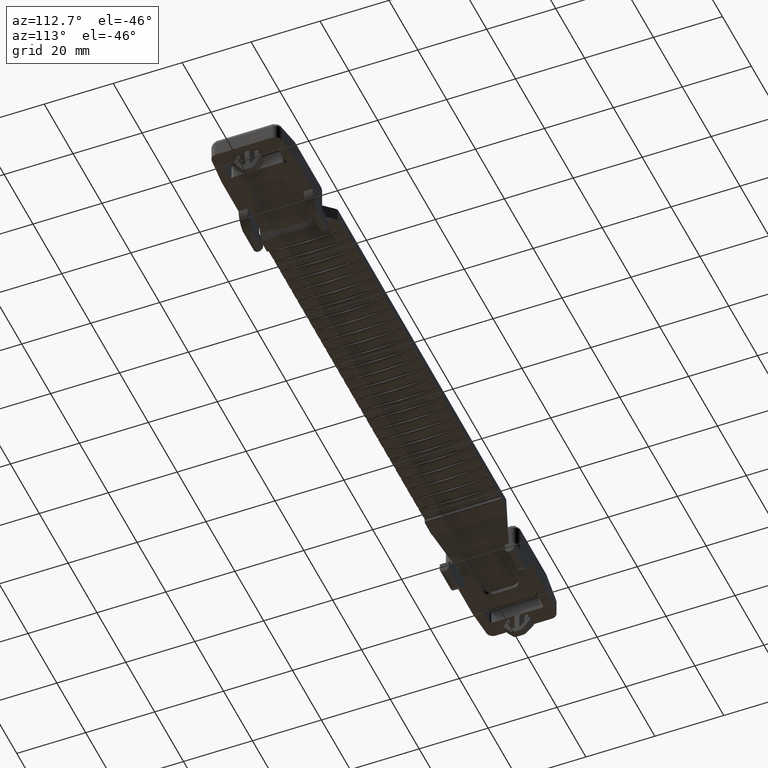
[diagram: clean part render]
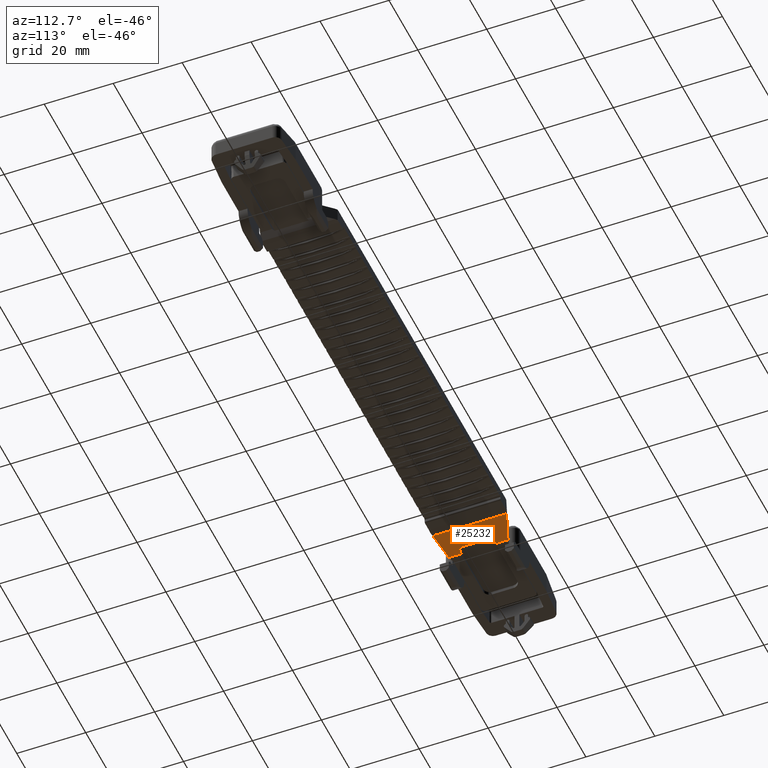
[diagram: same view with one face highlighted and labeled with its STEP entity id]
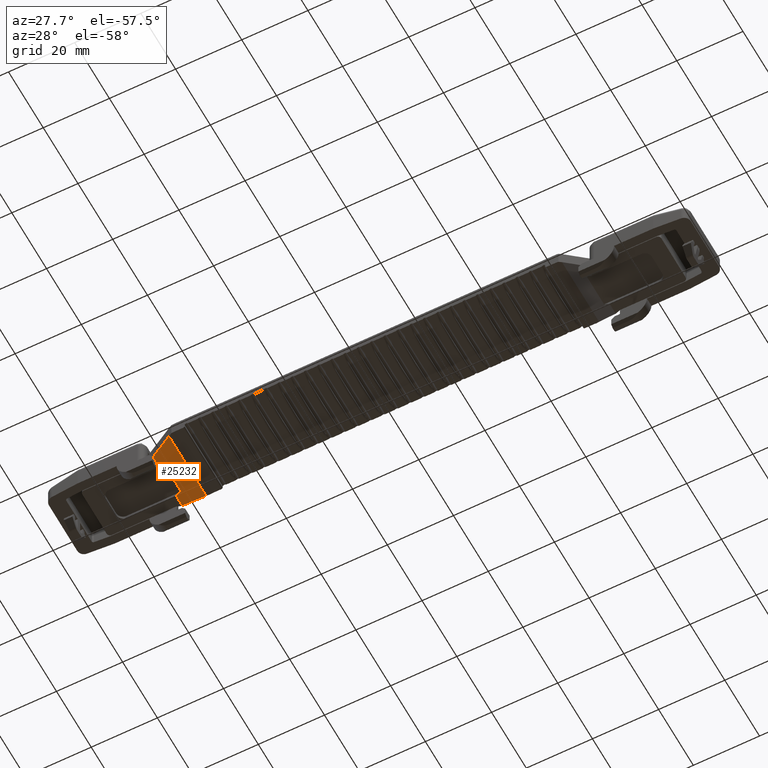
[diagram: same view with one face highlighted and labeled with its STEP entity id]
A machine part, auxiliary view. The second image highlights one B-rep face of the part: STEP entity #25232.
A second angle (auxiliary view) of the same face is appended — the face is thin or edge-on in the first view.
In plain terms, the highlighted face is a freeform B-spline surface patch.
Its self-contained STEP definition (entity closure, byte-faithful):
#3430=CARTESIAN_POINT('',(-65.472258732921091,-5.0,0.125856315938059));
#3431=VERTEX_POINT('',#3430);
#3447=CARTESIAN_POINT('',(-65.472258732921190,-8.577483772932780,0.125856315938033));
#3448=VERTEX_POINT('',#3447);
#3449=CARTESIAN_POINT('',(-65.472258732921190,-8.577483772932780,0.125856315938033));
#3450=CARTESIAN_POINT('',(-65.472258732921091,-5.0,0.125856315938059));
#3451=QUASI_UNIFORM_CURVE('',1,(#3449,#3450),.UNSPECIFIED.,.F.,.U.);
#3452=EDGE_CURVE('',#3448,#3431,#3451,.T.);
#3491=CARTESIAN_POINT('',(-65.472258732921091,8.577483772932510,0.125856315938061));
#3492=VERTEX_POINT('',#3491);
#3508=CARTESIAN_POINT('',(-65.472258732921091,5.0,0.125856315938059));
#3509=VERTEX_POINT('',#3508);
#3510=CARTESIAN_POINT('',(-65.472258732921091,5.0,0.125856315938059));
#3511=CARTESIAN_POINT('',(-65.472258732921091,8.577483772932510,0.125856315938061));
#3512=QUASI_UNIFORM_CURVE('',1,(#3510,#3511),.UNSPECIFIED.,.F.,.U.);
#3513=EDGE_CURVE('',#3509,#3492,#3512,.T.);
#3895=CARTESIAN_POINT('',(-59.405365542951508,-10.685199095512520,3.496574736247675));
#3896=VERTEX_POINT('',#3895);
#3910=CARTESIAN_POINT('',(-59.405365542951508,10.685199095512219,3.496574736247675));
#3911=VERTEX_POINT('',#3910);
#3912=CARTESIAN_POINT('',(-59.405365542951508,10.685199095512219,3.496574736247675));
#3913=CARTESIAN_POINT('',(-59.405365542951508,-10.685199095512520,3.496574736247675));
#3914=QUASI_UNIFORM_CURVE('',1,(#3912,#3913),.UNSPECIFIED.,.F.,.U.);
#3915=EDGE_CURVE('',#3911,#3896,#3914,.T.);
#4145=CARTESIAN_POINT('',(-59.405365542951508,-10.685199095512520,3.496574736247675));
#4146=CARTESIAN_POINT('',(-65.472258732921190,-8.577483772932780,0.125856315938033));
#4147=QUASI_UNIFORM_CURVE('',1,(#4145,#4146),.UNSPECIFIED.,.F.,.U.);
#4148=EDGE_CURVE('',#3896,#3448,#4147,.T.);
#4217=CARTESIAN_POINT('',(-65.472258732921091,8.577483772932510,0.125856315938061));
#4218=CARTESIAN_POINT('',(-59.405365542951508,10.685199095512219,3.496574736247675));
#4219=QUASI_UNIFORM_CURVE('',1,(#4217,#4218),.UNSPECIFIED.,.F.,.U.);
#4220=EDGE_CURVE('',#3492,#3911,#4219,.T.);
#23600=CARTESIAN_POINT('',(-63.900299999999987,-5.0,0.999224297062948));
#23601=VERTEX_POINT('',#23600);
#23602=CARTESIAN_POINT('',(-63.900299999999987,-5.0,0.999224297062948));
#23603=CARTESIAN_POINT('',(-65.472258732921091,-5.0,0.125856315938059));
#23604=QUASI_UNIFORM_CURVE('',1,(#23602,#23603),.UNSPECIFIED.,.F.,.U.);
#23605=EDGE_CURVE('',#23601,#3431,#23604,.T.);
#23628=CARTESIAN_POINT('',(-63.900299999999987,5.0,0.999224297062895));
#23629=VERTEX_POINT('',#23628);
#23630=CARTESIAN_POINT('',(-63.900299999999987,5.0,0.999224297062895));
#23631=CARTESIAN_POINT('',(-63.900299999999987,-5.0,0.999224297062948));
#23632=QUASI_UNIFORM_CURVE('',1,(#23630,#23631),.UNSPECIFIED.,.F.,.U.);
#23633=EDGE_CURVE('',#23629,#23601,#23632,.T.);
#23658=CARTESIAN_POINT('',(-65.472258732921091,5.0,0.125856315938059));
#23659=CARTESIAN_POINT('',(-63.900299999999987,5.0,0.999224297062895));
#23660=QUASI_UNIFORM_CURVE('',1,(#23658,#23659),.UNSPECIFIED.,.F.,.U.);
#23661=EDGE_CURVE('',#3509,#23629,#23660,.T.);
#25217=CARTESIAN_POINT('',(-59.102323819534561,-11.752650166774140,3.664942348344859));
#25218=CARTESIAN_POINT('',(-65.775300673307143,-11.752650166774140,-0.042511416705428));
#25219=CARTESIAN_POINT('',(-59.102323819534561,11.752649402508849,3.664942348344859));
#25220=CARTESIAN_POINT('',(-65.775300673307143,11.752649402508849,-0.042511416705428));
#25221=B_SPLINE_SURFACE_WITH_KNOTS('',1,1,((#25217,#25219),(#25218,#25220)),.UNSPECIFIED.,.F.,.F.,.U.,(2,2),(2,2),(0.0,7.633729986773844),(0.0,23.505299569282990),.UNSPECIFIED.);
#25222=ORIENTED_EDGE('',*,*,#23661,.F.);
#25223=ORIENTED_EDGE('',*,*,#3513,.T.);
#25224=ORIENTED_EDGE('',*,*,#4220,.T.);
#25225=ORIENTED_EDGE('',*,*,#3915,.T.);
#25226=ORIENTED_EDGE('',*,*,#4148,.T.);
#25227=ORIENTED_EDGE('',*,*,#3452,.T.);
#25228=ORIENTED_EDGE('',*,*,#23605,.F.);
#25229=ORIENTED_EDGE('',*,*,#23633,.F.);
#25230=EDGE_LOOP('',(#25222,#25223,#25224,#25225,#25226,#25227,#25228,#25229));
#25231=FACE_OUTER_BOUND('',#25230,.T.);
#25232=ADVANCED_FACE('',(#25231),#25221,.T.);